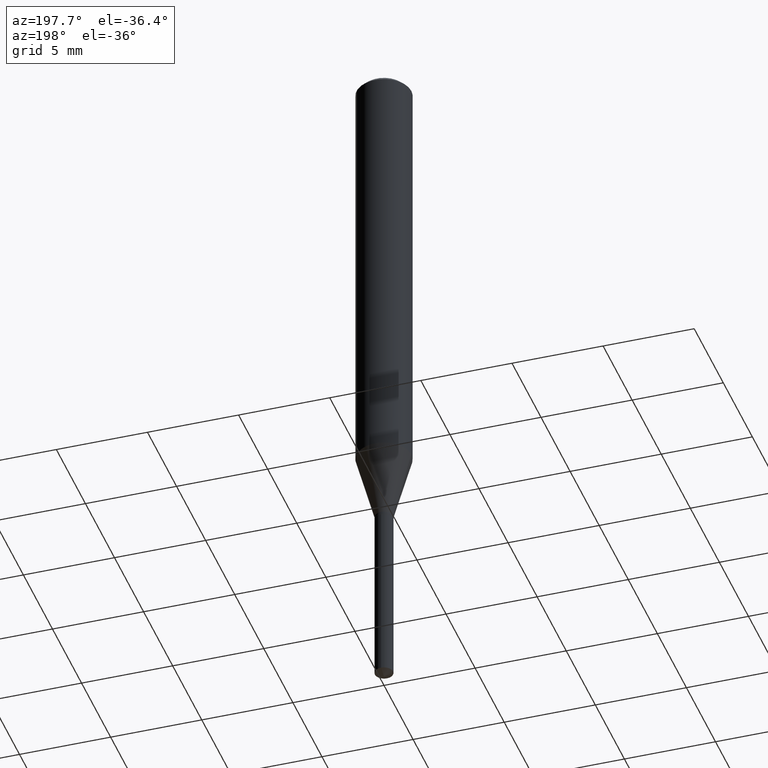
[diagram: clean part render]
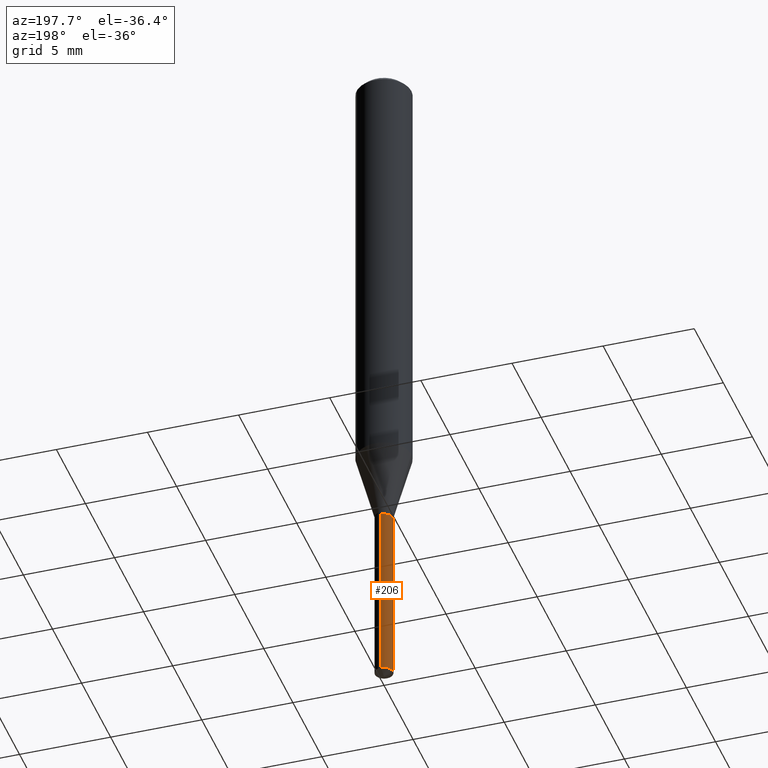
[diagram: same view with one face highlighted and labeled with its STEP entity id]
A machine part, auxiliary view. The second image highlights one B-rep face of the part: STEP entity #206.
In plain terms, the highlighted cylindrical surface (edge-blend (fillet) strip) has radius 0.4953 mm, axis along (-0, 0, 1).
Its self-contained STEP definition (entity closure, byte-faithful):
#10 = CARTESIAN_POINT ( 'NONE',  ( -1.361677722148554121E-16, -0.01950000000000381983, -1.094499999999999806 ) ) ;
#12 = CIRCLE ( 'NONE', #120, 0.01949999999999999997 ) ;
#15 = EDGE_CURVE ( 'NONE', #148, #189, #265, .T. ) ;
#36 = VECTOR ( 'NONE', #312, 39.37007874015748143 ) ;
#40 = ORIENTED_EDGE ( 'NONE', *, *, #15, .F. ) ;
#52 = CARTESIAN_POINT ( 'NONE',  ( 1.385558334732559469E-16, 0.01949999999999617664, -1.094499999999999806 ) ) ;
#66 = EDGE_CURVE ( 'NONE', #148, #157, #12, .T. ) ;
#73 = VERTEX_POINT ( 'NONE', #10 ) ;
#85 = CARTESIAN_POINT ( 'NONE',  ( 3.636426058976498027E-29, -5.191861741382022382E-15, -1.487007000665977685 ) ) ;
#94 = CIRCLE ( 'NONE', #150, 0.01949999999999999997 ) ;
#102 = DIRECTION ( 'NONE',  ( -2.445460715294871217E-29, 3.491492925458510144E-15, 1.000000000000000000 ) ) ;
#120 = AXIS2_PLACEMENT_3D ( 'NONE', #85, #198, #458 ) ;
#128 = EDGE_CURVE ( 'NONE', #157, #73, #195, .T. ) ;
#148 = VERTEX_POINT ( 'NONE', #309 ) ;
#150 = AXIS2_PLACEMENT_3D ( 'NONE', #267, #378, #333 ) ;
#157 = VERTEX_POINT ( 'NONE', #455 ) ;
#169 = FACE_OUTER_BOUND ( 'NONE', #228, .T. ) ;
#172 = CARTESIAN_POINT ( 'NONE',  ( 2.676565608369631794E-29, -3.821426325363822773E-15, -1.094499999999999806 ) ) ;
#189 = VERTEX_POINT ( 'NONE', #52 ) ;
#192 = ORIENTED_EDGE ( 'NONE', *, *, #331, .F. ) ;
#195 = LINE ( 'NONE', #426, #36 ) ;
#196 = VECTOR ( 'NONE', #444, 39.37007874015748143 ) ;
#198 = DIRECTION ( 'NONE',  ( -2.445460715294871217E-29, 3.491492925458510144E-15, 1.000000000000000000 ) ) ;
#206 = ADVANCED_FACE ( 'NONE', ( #169 ), #325, .T. ) ;
#228 = EDGE_LOOP ( 'NONE', ( #40, #380, #448, #192 ) ) ;
#259 = AXIS2_PLACEMENT_3D ( 'NONE', #172, #102, #322 ) ;
#265 = LINE ( 'NONE', #334, #196 ) ;
#267 = CARTESIAN_POINT ( 'NONE',  ( 2.676565608369631794E-29, -3.821426325363822773E-15, -1.094499999999999806 ) ) ;
#309 = CARTESIAN_POINT ( 'NONE',  ( 1.385558334732558236E-16, 0.01949999999999480274, -1.487007000665977685 ) ) ;
#312 = DIRECTION ( 'NONE',  ( -2.445460715294871217E-29, 3.491492925458510144E-15, 1.000000000000000000 ) ) ;
#322 = DIRECTION ( 'NONE',  ( -6.982962677686264344E-15, -1.000000000000000000, 0.000000000000000000 ) ) ;
#325 = CYLINDRICAL_SURFACE ( 'NONE', #259, 0.01949999999999999997 ) ;
#331 = EDGE_CURVE ( 'NONE', #189, #73, #94, .T. ) ;
#333 = DIRECTION ( 'NONE',  ( -6.982962677686264344E-15, -1.000000000000000000, 0.000000000000000000 ) ) ;
#334 = CARTESIAN_POINT ( 'NONE',  ( 1.385558334732462587E-16, 0.01949999999999617664, -1.094499999999999806 ) ) ;
#378 = DIRECTION ( 'NONE',  ( -2.445460715294871217E-29, 3.491492925458510144E-15, 1.000000000000000000 ) ) ;
#380 = ORIENTED_EDGE ( 'NONE', *, *, #66, .T. ) ;
#426 = CARTESIAN_POINT ( 'NONE',  ( -1.361677722148554121E-16, -0.01950000000000381983, -1.094499999999999806 ) ) ;
#444 = DIRECTION ( 'NONE',  ( -2.445460715294871217E-29, 3.491492925458510144E-15, 1.000000000000000000 ) ) ;
#448 = ORIENTED_EDGE ( 'NONE', *, *, #128, .T. ) ;
#455 = CARTESIAN_POINT ( 'NONE',  ( -1.361677722148457732E-16, -0.01950000000000518333, -1.487007000665977685 ) ) ;
#458 = DIRECTION ( 'NONE',  ( -6.982962677686264344E-15, -1.000000000000000000, 0.000000000000000000 ) ) ;